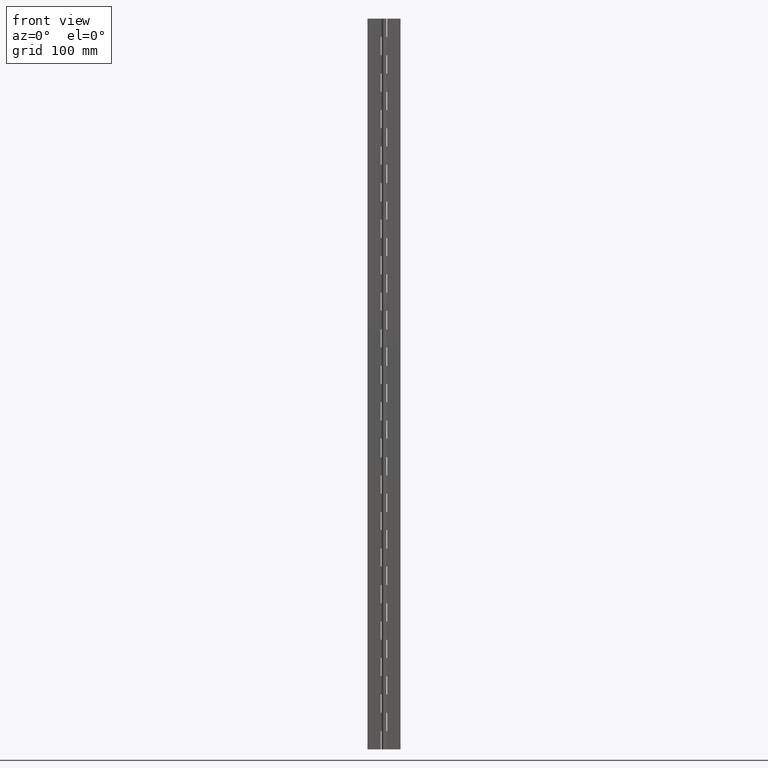
[diagram: clean part render]
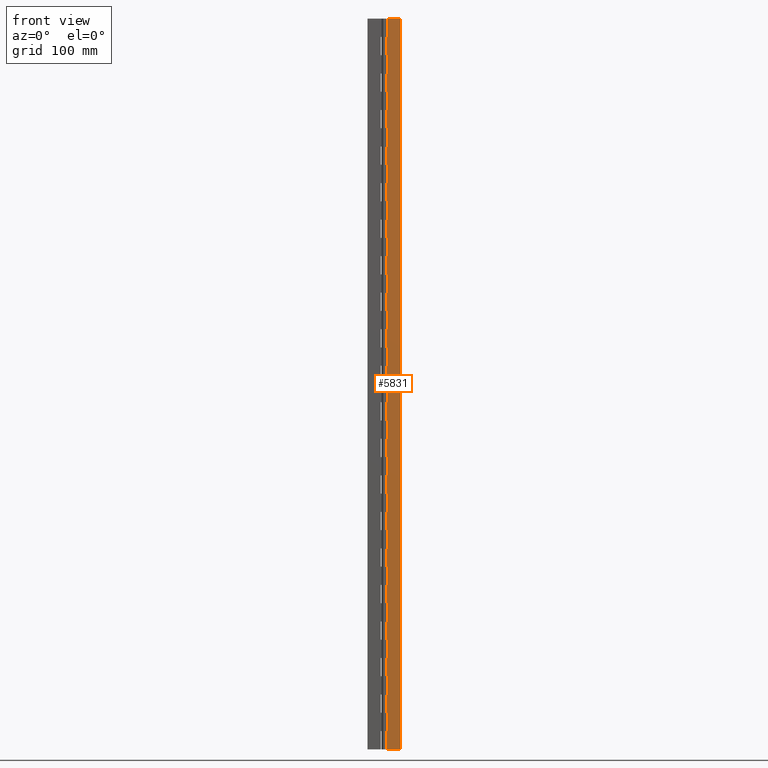
[diagram: same view with one face highlighted and labeled with its STEP entity id]
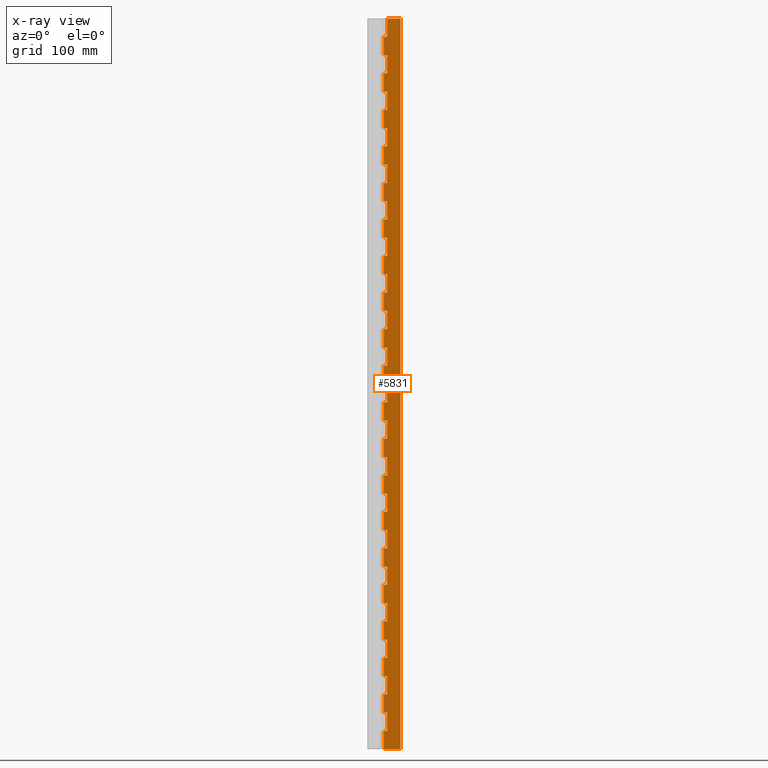
[diagram: x-ray of the same camera — body ghosted, the highlighted face saturated]
A machine part, front view. The second image highlights one B-rep face of the part: STEP entity #5831.
The next image is the same camera in x-ray: the body ghosted, the highlighted face saturated — about 0% of this face is hidden behind the body in this view.
In plain terms, the highlighted face is a freeform B-spline surface patch.
Its self-contained STEP definition (entity closure, byte-faithful):
#49=CARTESIAN_POINT('',(4.299996000000000,1.750000000000000,999.999977999999940));
#50=VERTEX_POINT('',#49);
#65=CARTESIAN_POINT('',(4.299996000000000,1.750000000000030,975.0));
#66=VERTEX_POINT('',#65);
#72=CARTESIAN_POINT('',(4.299996000000000,1.750000000000000,999.999977999999940));
#73=CARTESIAN_POINT('',(4.299996000000000,1.750000000000030,975.0));
#74=QUASI_UNIFORM_CURVE('',1,(#72,#73),.UNSPECIFIED.,.F.,.U.);
#75=EDGE_CURVE('',#50,#66,#74,.T.);
#128=CARTESIAN_POINT('',(-3.214592E-016,1.750000000000000,975.0));
#129=VERTEX_POINT('',#128);
#149=CARTESIAN_POINT('',(4.299996000000000,1.750000000000030,975.0));
#150=CARTESIAN_POINT('',(-3.214592E-016,1.750000000000000,975.0));
#151=QUASI_UNIFORM_CURVE('',1,(#149,#150),.UNSPECIFIED.,.F.,.U.);
#152=EDGE_CURVE('',#66,#129,#151,.T.);
#162=CARTESIAN_POINT('',(-3.214592E-016,1.750000000000000,950.000007999999980));
#163=VERTEX_POINT('',#162);
#227=CARTESIAN_POINT('',(4.299996000000000,1.750000000000030,950.000007999999980));
#228=VERTEX_POINT('',#227);
#234=CARTESIAN_POINT('',(-3.214592E-016,1.750000000000000,950.000007999999980));
#235=CARTESIAN_POINT('',(4.299996000000000,1.750000000000030,950.000007999999980));
#236=QUASI_UNIFORM_CURVE('',1,(#234,#235),.UNSPECIFIED.,.F.,.U.);
#237=EDGE_CURVE('',#163,#228,#236,.T.);
#255=CARTESIAN_POINT('',(4.299996000000000,1.750000000000030,925.0));
#256=VERTEX_POINT('',#255);
#262=CARTESIAN_POINT('',(4.299996000000000,1.750000000000030,950.000007999999980));
#263=CARTESIAN_POINT('',(4.299996000000000,1.750000000000030,925.0));
#264=QUASI_UNIFORM_CURVE('',1,(#262,#263),.UNSPECIFIED.,.F.,.U.);
#265=EDGE_CURVE('',#228,#256,#264,.T.);
#318=CARTESIAN_POINT('',(-3.214592E-016,1.750000000000000,925.0));
#319=VERTEX_POINT('',#318);
#339=CARTESIAN_POINT('',(4.299996000000000,1.750000000000030,925.0));
#340=CARTESIAN_POINT('',(-3.214592E-016,1.750000000000000,925.0));
#341=QUASI_UNIFORM_CURVE('',1,(#339,#340),.UNSPECIFIED.,.F.,.U.);
#342=EDGE_CURVE('',#256,#319,#341,.T.);
#352=CARTESIAN_POINT('',(-3.214592E-016,1.750000000000000,900.000007999999980));
#353=VERTEX_POINT('',#352);
#417=CARTESIAN_POINT('',(4.299996000000000,1.750000000000030,900.000007999999980));
#418=VERTEX_POINT('',#417);
#424=CARTESIAN_POINT('',(-3.214592E-016,1.750000000000000,900.000007999999980));
#425=CARTESIAN_POINT('',(4.299996000000000,1.750000000000030,900.000007999999980));
#426=QUASI_UNIFORM_CURVE('',1,(#424,#425),.UNSPECIFIED.,.F.,.U.);
#427=EDGE_CURVE('',#353,#418,#426,.T.);
#445=CARTESIAN_POINT('',(4.299996000000000,1.750000000000030,875.0));
#446=VERTEX_POINT('',#445);
#452=CARTESIAN_POINT('',(4.299996000000000,1.750000000000030,900.000007999999980));
#453=CARTESIAN_POINT('',(4.299996000000000,1.750000000000030,875.0));
#454=QUASI_UNIFORM_CURVE('',1,(#452,#453),.UNSPECIFIED.,.F.,.U.);
#455=EDGE_CURVE('',#418,#446,#454,.T.);
#508=CARTESIAN_POINT('',(-3.214592E-016,1.750000000000000,875.0));
#509=VERTEX_POINT('',#508);
#529=CARTESIAN_POINT('',(4.299996000000000,1.750000000000030,875.0));
#530=CARTESIAN_POINT('',(-3.214592E-016,1.750000000000000,875.0));
#531=QUASI_UNIFORM_CURVE('',1,(#529,#530),.UNSPECIFIED.,.F.,.U.);
#532=EDGE_CURVE('',#446,#509,#531,.T.);
#542=CARTESIAN_POINT('',(-3.214592E-016,1.750000000000000,850.000007999999980));
#543=VERTEX_POINT('',#542);
#607=CARTESIAN_POINT('',(4.299996000000000,1.750000000000030,850.000007999999980));
#608=VERTEX_POINT('',#607);
#614=CARTESIAN_POINT('',(-3.214592E-016,1.750000000000000,850.000007999999980));
#615=CARTESIAN_POINT('',(4.299996000000000,1.750000000000030,850.000007999999980));
#616=QUASI_UNIFORM_CURVE('',1,(#614,#615),.UNSPECIFIED.,.F.,.U.);
#617=EDGE_CURVE('',#543,#608,#616,.T.);
#635=CARTESIAN_POINT('',(4.299996000000000,1.750000000000030,825.0));
#636=VERTEX_POINT('',#635);
#642=CARTESIAN_POINT('',(4.299996000000000,1.750000000000030,850.000007999999980));
#643=CARTESIAN_POINT('',(4.299996000000000,1.750000000000030,825.0));
#644=QUASI_UNIFORM_CURVE('',1,(#642,#643),.UNSPECIFIED.,.F.,.U.);
#645=EDGE_CURVE('',#608,#636,#644,.T.);
#698=CARTESIAN_POINT('',(-3.214592E-016,1.750000000000000,825.0));
#699=VERTEX_POINT('',#698);
#719=CARTESIAN_POINT('',(4.299996000000000,1.750000000000030,825.0));
#720=CARTESIAN_POINT('',(-3.214592E-016,1.750000000000000,825.0));
#721=QUASI_UNIFORM_CURVE('',1,(#719,#720),.UNSPECIFIED.,.F.,.U.);
#722=EDGE_CURVE('',#636,#699,#721,.T.);
#732=CARTESIAN_POINT('',(-3.214592E-016,1.750000000000000,800.000008000000090));
#733=VERTEX_POINT('',#732);
#797=CARTESIAN_POINT('',(4.299996000000000,1.750000000000030,800.000008000000090));
#798=VERTEX_POINT('',#797);
#804=CARTESIAN_POINT('',(-3.214592E-016,1.750000000000000,800.000008000000090));
#805=CARTESIAN_POINT('',(4.299996000000000,1.750000000000030,800.000008000000090));
#806=QUASI_UNIFORM_CURVE('',1,(#804,#805),.UNSPECIFIED.,.F.,.U.);
#807=EDGE_CURVE('',#733,#798,#806,.T.);
#825=CARTESIAN_POINT('',(4.299996000000000,1.750000000000030,775.0));
#826=VERTEX_POINT('',#825);
#832=CARTESIAN_POINT('',(4.299996000000000,1.750000000000030,800.000008000000090));
#833=CARTESIAN_POINT('',(4.299996000000000,1.750000000000030,775.0));
#834=QUASI_UNIFORM_CURVE('',1,(#832,#833),.UNSPECIFIED.,.F.,.U.);
#835=EDGE_CURVE('',#798,#826,#834,.T.);
#888=CARTESIAN_POINT('',(-3.214592E-016,1.750000000000000,775.0));
#889=VERTEX_POINT('',#888);
#909=CARTESIAN_POINT('',(4.299996000000000,1.750000000000030,775.0));
#910=CARTESIAN_POINT('',(-3.214592E-016,1.750000000000000,775.0));
#911=QUASI_UNIFORM_CURVE('',1,(#909,#910),.UNSPECIFIED.,.F.,.U.);
#912=EDGE_CURVE('',#826,#889,#911,.T.);
#922=CARTESIAN_POINT('',(-3.214592E-016,1.750000000000000,750.000007999999980));
#923=VERTEX_POINT('',#922);
#987=CARTESIAN_POINT('',(4.299996000000000,1.750000000000030,750.000007999999980));
#988=VERTEX_POINT('',#987);
#994=CARTESIAN_POINT('',(-3.214592E-016,1.750000000000000,750.000007999999980));
#995=CARTESIAN_POINT('',(4.299996000000000,1.750000000000030,750.000007999999980));
#996=QUASI_UNIFORM_CURVE('',1,(#994,#995),.UNSPECIFIED.,.F.,.U.);
#997=EDGE_CURVE('',#923,#988,#996,.T.);
#1015=CARTESIAN_POINT('',(4.299996000000000,1.750000000000030,725.0));
#1016=VERTEX_POINT('',#1015);
#1022=CARTESIAN_POINT('',(4.299996000000000,1.750000000000030,750.000007999999980));
#1023=CARTESIAN_POINT('',(4.299996000000000,1.750000000000030,725.0));
#1024=QUASI_UNIFORM_CURVE('',1,(#1022,#1023),.UNSPECIFIED.,.F.,.U.);
#1025=EDGE_CURVE('',#988,#1016,#1024,.T.);
#1078=CARTESIAN_POINT('',(-3.214592E-016,1.750000000000000,725.0));
#1079=VERTEX_POINT('',#1078);
#1099=CARTESIAN_POINT('',(4.299996000000000,1.750000000000030,725.0));
#1100=CARTESIAN_POINT('',(-3.214592E-016,1.750000000000000,725.0));
#1101=QUASI_UNIFORM_CURVE('',1,(#1099,#1100),.UNSPECIFIED.,.F.,.U.);
#1102=EDGE_CURVE('',#1016,#1079,#1101,.T.);
#1112=CARTESIAN_POINT('',(-3.214592E-016,1.750000000000000,700.000007999999980));
#1113=VERTEX_POINT('',#1112);
#1177=CARTESIAN_POINT('',(4.299996000000000,1.750000000000030,700.000007999999980));
#1178=VERTEX_POINT('',#1177);
#1184=CARTESIAN_POINT('',(-3.214592E-016,1.750000000000000,700.000007999999980));
#1185=CARTESIAN_POINT('',(4.299996000000000,1.750000000000030,700.000007999999980));
#1186=QUASI_UNIFORM_CURVE('',1,(#1184,#1185),.UNSPECIFIED.,.F.,.U.);
#1187=EDGE_CURVE('',#1113,#1178,#1186,.T.);
#1205=CARTESIAN_POINT('',(4.299996000000000,1.750000000000030,675.0));
#1206=VERTEX_POINT('',#1205);
#1212=CARTESIAN_POINT('',(4.299996000000000,1.750000000000030,700.000007999999980));
#1213=CARTESIAN_POINT('',(4.299996000000000,1.750000000000030,675.0));
#1214=QUASI_UNIFORM_CURVE('',1,(#1212,#1213),.UNSPECIFIED.,.F.,.U.);
#1215=EDGE_CURVE('',#1178,#1206,#1214,.T.);
#1268=CARTESIAN_POINT('',(-3.214592E-016,1.750000000000000,675.0));
#1269=VERTEX_POINT('',#1268);
#1289=CARTESIAN_POINT('',(4.299996000000000,1.750000000000030,675.0));
#1290=CARTESIAN_POINT('',(-3.214592E-016,1.750000000000000,675.0));
#1291=QUASI_UNIFORM_CURVE('',1,(#1289,#1290),.UNSPECIFIED.,.F.,.U.);
#1292=EDGE_CURVE('',#1206,#1269,#1291,.T.);
#1302=CARTESIAN_POINT('',(-3.214592E-016,1.750000000000000,650.000007999999980));
#1303=VERTEX_POINT('',#1302);
#1367=CARTESIAN_POINT('',(4.299996000000000,1.750000000000030,650.000007999999980));
#1368=VERTEX_POINT('',#1367);
#1374=CARTESIAN_POINT('',(-3.214592E-016,1.750000000000000,650.000007999999980));
#1375=CARTESIAN_POINT('',(4.299996000000000,1.750000000000030,650.000007999999980));
#1376=QUASI_UNIFORM_CURVE('',1,(#1374,#1375),.UNSPECIFIED.,.F.,.U.);
#1377=EDGE_CURVE('',#1303,#1368,#1376,.T.);
#1395=CARTESIAN_POINT('',(4.299996000000000,1.750000000000030,625.0));
#1396=VERTEX_POINT('',#1395);
#1402=CARTESIAN_POINT('',(4.299996000000000,1.750000000000030,650.000007999999980));
#1403=CARTESIAN_POINT('',(4.299996000000000,1.750000000000030,625.0));
#1404=QUASI_UNIFORM_CURVE('',1,(#1402,#1403),.UNSPECIFIED.,.F.,.U.);
#1405=EDGE_CURVE('',#1368,#1396,#1404,.T.);
#1458=CARTESIAN_POINT('',(-3.214592E-016,1.750000000000000,625.0));
#1459=VERTEX_POINT('',#1458);
#1479=CARTESIAN_POINT('',(4.299996000000000,1.750000000000030,625.0));
#1480=CARTESIAN_POINT('',(-3.214592E-016,1.750000000000000,625.0));
#1481=QUASI_UNIFORM_CURVE('',1,(#1479,#1480),.UNSPECIFIED.,.F.,.U.);
#1482=EDGE_CURVE('',#1396,#1459,#1481,.T.);
#1492=CARTESIAN_POINT('',(-3.214592E-016,1.750000000000000,600.000007999999980));
#1493=VERTEX_POINT('',#1492);
#1557=CARTESIAN_POINT('',(4.299996000000000,1.750000000000030,600.000007999999980));
#1558=VERTEX_POINT('',#1557);
#1564=CARTESIAN_POINT('',(-3.214592E-016,1.750000000000000,600.000007999999980));
#1565=CARTESIAN_POINT('',(4.299996000000000,1.750000000000030,600.000007999999980));
#1566=QUASI_UNIFORM_CURVE('',1,(#1564,#1565),.UNSPECIFIED.,.F.,.U.);
#1567=EDGE_CURVE('',#1493,#1558,#1566,.T.);
#1585=CARTESIAN_POINT('',(4.299996000000000,1.750000000000030,575.0));
#1586=VERTEX_POINT('',#1585);
#1592=CARTESIAN_POINT('',(4.299996000000000,1.750000000000030,600.000007999999980));
#1593=CARTESIAN_POINT('',(4.299996000000000,1.750000000000030,575.0));
#1594=QUASI_UNIFORM_CURVE('',1,(#1592,#1593),.UNSPECIFIED.,.F.,.U.);
#1595=EDGE_CURVE('',#1558,#1586,#1594,.T.);
#1648=CARTESIAN_POINT('',(-3.214592E-016,1.750000000000000,575.0));
#1649=VERTEX_POINT('',#1648);
#1669=CARTESIAN_POINT('',(4.299996000000000,1.750000000000030,575.0));
#1670=CARTESIAN_POINT('',(-3.214592E-016,1.750000000000000,575.0));
#1671=QUASI_UNIFORM_CURVE('',1,(#1669,#1670),.UNSPECIFIED.,.F.,.U.);
#1672=EDGE_CURVE('',#1586,#1649,#1671,.T.);
#1682=CARTESIAN_POINT('',(-3.214592E-016,1.750000000000000,550.000008000000090));
#1683=VERTEX_POINT('',#1682);
#1747=CARTESIAN_POINT('',(4.299996000000000,1.750000000000030,550.000008000000090));
#1748=VERTEX_POINT('',#1747);
#1754=CARTESIAN_POINT('',(-3.214592E-016,1.750000000000000,550.000008000000090));
#1755=CARTESIAN_POINT('',(4.299996000000000,1.750000000000030,550.000008000000090));
#1756=QUASI_UNIFORM_CURVE('',1,(#1754,#1755),.UNSPECIFIED.,.F.,.U.);
#1757=EDGE_CURVE('',#1683,#1748,#1756,.T.);
#1775=CARTESIAN_POINT('',(4.299996000000000,1.750000000000030,525.0));
#1776=VERTEX_POINT('',#1775);
#1782=CARTESIAN_POINT('',(4.299996000000000,1.750000000000030,550.000008000000090));
#1783=CARTESIAN_POINT('',(4.299996000000000,1.750000000000030,525.0));
#1784=QUASI_UNIFORM_CURVE('',1,(#1782,#1783),.UNSPECIFIED.,.F.,.U.);
#1785=EDGE_CURVE('',#1748,#1776,#1784,.T.);
#1838=CARTESIAN_POINT('',(-3.214592E-016,1.750000000000000,525.0));
#1839=VERTEX_POINT('',#1838);
#1859=CARTESIAN_POINT('',(4.299996000000000,1.750000000000030,525.0));
#1860=CARTESIAN_POINT('',(-3.214592E-016,1.750000000000000,525.0));
#1861=QUASI_UNIFORM_CURVE('',1,(#1859,#1860),.UNSPECIFIED.,.F.,.U.);
#1862=EDGE_CURVE('',#1776,#1839,#1861,.T.);
#1872=CARTESIAN_POINT('',(-3.214592E-016,1.750000000000000,500.000007999999980));
#1873=VERTEX_POINT('',#1872);
#1937=CARTESIAN_POINT('',(4.299996000000000,1.750000000000030,500.000007999999980));
#1938=VERTEX_POINT('',#1937);
#1944=CARTESIAN_POINT('',(-3.214592E-016,1.750000000000000,500.000007999999980));
#1945=CARTESIAN_POINT('',(4.299996000000000,1.750000000000030,500.000007999999980));
#1946=QUASI_UNIFORM_CURVE('',1,(#1944,#1945),.UNSPECIFIED.,.F.,.U.);
#1947=EDGE_CURVE('',#1873,#1938,#1946,.T.);
#1965=CARTESIAN_POINT('',(4.299996000000000,1.750000000000030,475.0));
#1966=VERTEX_POINT('',#1965);
#1972=CARTESIAN_POINT('',(4.299996000000000,1.750000000000030,500.000007999999980));
#1973=CARTESIAN_POINT('',(4.299996000000000,1.750000000000030,475.0));
#1974=QUASI_UNIFORM_CURVE('',1,(#1972,#1973),.UNSPECIFIED.,.F.,.U.);
#1975=EDGE_CURVE('',#1938,#1966,#1974,.T.);
#2028=CARTESIAN_POINT('',(-3.214592E-016,1.750000000000000,475.0));
#2029=VERTEX_POINT('',#2028);
#2049=CARTESIAN_POINT('',(4.299996000000000,1.750000000000030,475.0));
#2050=CARTESIAN_POINT('',(-3.214592E-016,1.750000000000000,475.0));
#2051=QUASI_UNIFORM_CURVE('',1,(#2049,#2050),.UNSPECIFIED.,.F.,.U.);
#2052=EDGE_CURVE('',#1966,#2029,#2051,.T.);
#2062=CARTESIAN_POINT('',(-3.214592E-016,1.750000000000000,450.000007999999980));
#2063=VERTEX_POINT('',#2062);
#2127=CARTESIAN_POINT('',(4.299996000000000,1.750000000000030,450.000007999999980));
#2128=VERTEX_POINT('',#2127);
#2134=CARTESIAN_POINT('',(-3.214592E-016,1.750000000000000,450.000007999999980));
#2135=CARTESIAN_POINT('',(4.299996000000000,1.750000000000030,450.000007999999980));
#2136=QUASI_UNIFORM_CURVE('',1,(#2134,#2135),.UNSPECIFIED.,.F.,.U.);
#2137=EDGE_CURVE('',#2063,#2128,#2136,.T.);
#2155=CARTESIAN_POINT('',(4.299996000000000,1.750000000000030,425.0));
#2156=VERTEX_POINT('',#2155);
#2162=CARTESIAN_POINT('',(4.299996000000000,1.750000000000030,450.000007999999980));
#2163=CARTESIAN_POINT('',(4.299996000000000,1.750000000000030,425.0));
#2164=QUASI_UNIFORM_CURVE('',1,(#2162,#2163),.UNSPECIFIED.,.F.,.U.);
#2165=EDGE_CURVE('',#2128,#2156,#2164,.T.);
#2218=CARTESIAN_POINT('',(-3.214592E-016,1.750000000000000,425.0));
#2219=VERTEX_POINT('',#2218);
#2239=CARTESIAN_POINT('',(4.299996000000000,1.750000000000030,425.0));
#2240=CARTESIAN_POINT('',(-3.214592E-016,1.750000000000000,425.0));
#2241=QUASI_UNIFORM_CURVE('',1,(#2239,#2240),.UNSPECIFIED.,.F.,.U.);
#2242=EDGE_CURVE('',#2156,#2219,#2241,.T.);
#2252=CARTESIAN_POINT('',(-3.214592E-016,1.750000000000000,400.000007999999980));
#2253=VERTEX_POINT('',#2252);
#2317=CARTESIAN_POINT('',(4.299996000000000,1.750000000000030,400.000007999999980));
#2318=VERTEX_POINT('',#2317);
#2324=CARTESIAN_POINT('',(-3.214592E-016,1.750000000000000,400.000007999999980));
#2325=CARTESIAN_POINT('',(4.299996000000000,1.750000000000030,400.000007999999980));
#2326=QUASI_UNIFORM_CURVE('',1,(#2324,#2325),.UNSPECIFIED.,.F.,.U.);
#2327=EDGE_CURVE('',#2253,#2318,#2326,.T.);
#2345=CARTESIAN_POINT('',(4.299996000000000,1.750000000000030,375.0));
#2346=VERTEX_POINT('',#2345);
#2352=CARTESIAN_POINT('',(4.299996000000000,1.750000000000030,400.000007999999980));
#2353=CARTESIAN_POINT('',(4.299996000000000,1.750000000000030,375.0));
#2354=QUASI_UNIFORM_CURVE('',1,(#2352,#2353),.UNSPECIFIED.,.F.,.U.);
#2355=EDGE_CURVE('',#2318,#2346,#2354,.T.);
#2408=CARTESIAN_POINT('',(-3.214592E-016,1.750000000000000,375.0));
#2409=VERTEX_POINT('',#2408);
#2429=CARTESIAN_POINT('',(4.299996000000000,1.750000000000030,375.0));
#2430=CARTESIAN_POINT('',(-3.214592E-016,1.750000000000000,375.0));
#2431=QUASI_UNIFORM_CURVE('',1,(#2429,#2430),.UNSPECIFIED.,.F.,.U.);
#2432=EDGE_CURVE('',#2346,#2409,#2431,.T.);
#2442=CARTESIAN_POINT('',(-3.214592E-016,1.750000000000000,350.000007999999980));
#2443=VERTEX_POINT('',#2442);
#2507=CARTESIAN_POINT('',(4.299996000000000,1.750000000000030,350.000007999999980));
#2508=VERTEX_POINT('',#2507);
#2514=CARTESIAN_POINT('',(-3.214592E-016,1.750000000000000,350.000007999999980));
#2515=CARTESIAN_POINT('',(4.299996000000000,1.750000000000030,350.000007999999980));
#2516=QUASI_UNIFORM_CURVE('',1,(#2514,#2515),.UNSPECIFIED.,.F.,.U.);
#2517=EDGE_CURVE('',#2443,#2508,#2516,.T.);
#2535=CARTESIAN_POINT('',(4.299996000000000,1.750000000000030,325.0));
#2536=VERTEX_POINT('',#2535);
#2542=CARTESIAN_POINT('',(4.299996000000000,1.750000000000030,350.000007999999980));
#2543=CARTESIAN_POINT('',(4.299996000000000,1.750000000000030,325.0));
#2544=QUASI_UNIFORM_CURVE('',1,(#2542,#2543),.UNSPECIFIED.,.F.,.U.);
#2545=EDGE_CURVE('',#2508,#2536,#2544,.T.);
#2598=CARTESIAN_POINT('',(-3.214592E-016,1.750000000000000,325.0));
#2599=VERTEX_POINT('',#2598);
#2619=CARTESIAN_POINT('',(4.299996000000000,1.750000000000030,325.0));
#2620=CARTESIAN_POINT('',(-3.214592E-016,1.750000000000000,325.0));
#2621=QUASI_UNIFORM_CURVE('',1,(#2619,#2620),.UNSPECIFIED.,.F.,.U.);
#2622=EDGE_CURVE('',#2536,#2599,#2621,.T.);
#2632=CARTESIAN_POINT('',(-3.214592E-016,1.750000000000000,300.000007999999980));
#2633=VERTEX_POINT('',#2632);
#2697=CARTESIAN_POINT('',(4.299996000000000,1.750000000000030,300.000007999999980));
#2698=VERTEX_POINT('',#2697);
#2704=CARTESIAN_POINT('',(-3.214592E-016,1.750000000000000,300.000007999999980));
#2705=CARTESIAN_POINT('',(4.299996000000000,1.750000000000030,300.000007999999980));
#2706=QUASI_UNIFORM_CURVE('',1,(#2704,#2705),.UNSPECIFIED.,.F.,.U.);
#2707=EDGE_CURVE('',#2633,#2698,#2706,.T.);
#2725=CARTESIAN_POINT('',(4.299996000000000,1.750000000000030,275.0));
#2726=VERTEX_POINT('',#2725);
#2732=CARTESIAN_POINT('',(4.299996000000000,1.750000000000030,300.000007999999980));
#2733=CARTESIAN_POINT('',(4.299996000000000,1.750000000000030,275.0));
#2734=QUASI_UNIFORM_CURVE('',1,(#2732,#2733),.UNSPECIFIED.,.F.,.U.);
#2735=EDGE_CURVE('',#2698,#2726,#2734,.T.);
#2788=CARTESIAN_POINT('',(-3.214592E-016,1.750000000000000,275.0));
#2789=VERTEX_POINT('',#2788);
#2809=CARTESIAN_POINT('',(4.299996000000000,1.750000000000030,275.0));
#2810=CARTESIAN_POINT('',(-3.214592E-016,1.750000000000000,275.0));
#2811=QUASI_UNIFORM_CURVE('',1,(#2809,#2810),.UNSPECIFIED.,.F.,.U.);
#2812=EDGE_CURVE('',#2726,#2789,#2811,.T.);
#2822=CARTESIAN_POINT('',(-3.214592E-016,1.750000000000000,250.000008000000010));
#2823=VERTEX_POINT('',#2822);
#2887=CARTESIAN_POINT('',(4.299996000000000,1.750000000000030,250.000008000000010));
#2888=VERTEX_POINT('',#2887);
#2894=CARTESIAN_POINT('',(-3.214592E-016,1.750000000000000,250.000008000000010));
#2895=CARTESIAN_POINT('',(4.299996000000000,1.750000000000030,250.000008000000010));
#2896=QUASI_UNIFORM_CURVE('',1,(#2894,#2895),.UNSPECIFIED.,.F.,.U.);
#2897=EDGE_CURVE('',#2823,#2888,#2896,.T.);
#2915=CARTESIAN_POINT('',(4.299996000000000,1.750000000000030,225.0));
#2916=VERTEX_POINT('',#2915);
#2922=CARTESIAN_POINT('',(4.299996000000000,1.750000000000030,250.000008000000010));
#2923=CARTESIAN_POINT('',(4.299996000000000,1.750000000000030,225.0));
#2924=QUASI_UNIFORM_CURVE('',1,(#2922,#2923),.UNSPECIFIED.,.F.,.U.);
#2925=EDGE_CURVE('',#2888,#2916,#2924,.T.);
#2978=CARTESIAN_POINT('',(-3.214592E-016,1.750000000000000,225.0));
#2979=VERTEX_POINT('',#2978);
#2999=CARTESIAN_POINT('',(4.299996000000000,1.750000000000030,225.0));
#3000=CARTESIAN_POINT('',(-3.214592E-016,1.750000000000000,225.0));
#3001=QUASI_UNIFORM_CURVE('',1,(#2999,#3000),.UNSPECIFIED.,.F.,.U.);
#3002=EDGE_CURVE('',#2916,#2979,#3001,.T.);
#3012=CARTESIAN_POINT('',(-3.214592E-016,1.750000000000000,200.000008000000010));
#3013=VERTEX_POINT('',#3012);
#3077=CARTESIAN_POINT('',(4.299996000000000,1.750000000000030,200.000008000000010));
#3078=VERTEX_POINT('',#3077);
#3084=CARTESIAN_POINT('',(-3.214592E-016,1.750000000000000,200.000008000000010));
#3085=CARTESIAN_POINT('',(4.299996000000000,1.750000000000030,200.000008000000010));
#3086=QUASI_UNIFORM_CURVE('',1,(#3084,#3085),.UNSPECIFIED.,.F.,.U.);
#3087=EDGE_CURVE('',#3013,#3078,#3086,.T.);
#3105=CARTESIAN_POINT('',(4.299996000000000,1.750000000000030,175.0));
#3106=VERTEX_POINT('',#3105);
#3112=CARTESIAN_POINT('',(4.299996000000000,1.750000000000030,200.000008000000010));
#3113=CARTESIAN_POINT('',(4.299996000000000,1.750000000000030,175.0));
#3114=QUASI_UNIFORM_CURVE('',1,(#3112,#3113),.UNSPECIFIED.,.F.,.U.);
#3115=EDGE_CURVE('',#3078,#3106,#3114,.T.);
#3168=CARTESIAN_POINT('',(-3.214592E-016,1.750000000000000,175.0));
#3169=VERTEX_POINT('',#3168);
#3189=CARTESIAN_POINT('',(4.299996000000000,1.750000000000030,175.0));
#3190=CARTESIAN_POINT('',(-3.214592E-016,1.750000000000000,175.0));
#3191=QUASI_UNIFORM_CURVE('',1,(#3189,#3190),.UNSPECIFIED.,.F.,.U.);
#3192=EDGE_CURVE('',#3106,#3169,#3191,.T.);
#3202=CARTESIAN_POINT('',(-3.214592E-016,1.750000000000000,150.000008000000010));
#3203=VERTEX_POINT('',#3202);
#3267=CARTESIAN_POINT('',(4.299996000000000,1.750000000000030,150.000008000000010));
#3268=VERTEX_POINT('',#3267);
#3274=CARTESIAN_POINT('',(-3.214592E-016,1.750000000000000,150.000008000000010));
#3275=CARTESIAN_POINT('',(4.299996000000000,1.750000000000030,150.000008000000010));
#3276=QUASI_UNIFORM_CURVE('',1,(#3274,#3275),.UNSPECIFIED.,.F.,.U.);
#3277=EDGE_CURVE('',#3203,#3268,#3276,.T.);
#3295=CARTESIAN_POINT('',(4.299996000000000,1.750000000000030,125.0));
#3296=VERTEX_POINT('',#3295);
#3302=CARTESIAN_POINT('',(4.299996000000000,1.750000000000030,150.000008000000010));
#3303=CARTESIAN_POINT('',(4.299996000000000,1.750000000000030,125.0));
#3304=QUASI_UNIFORM_CURVE('',1,(#3302,#3303),.UNSPECIFIED.,.F.,.U.);
#3305=EDGE_CURVE('',#3268,#3296,#3304,.T.);
#3358=CARTESIAN_POINT('',(-3.214592E-016,1.750000000000000,125.0));
#3359=VERTEX_POINT('',#3358);
#3379=CARTESIAN_POINT('',(4.299996000000000,1.750000000000030,125.0));
#3380=CARTESIAN_POINT('',(-3.214592E-016,1.750000000000000,125.0));
#3381=QUASI_UNIFORM_CURVE('',1,(#3379,#3380),.UNSPECIFIED.,.F.,.U.);
#3382=EDGE_CURVE('',#3296,#3359,#3381,.T.);
#3392=CARTESIAN_POINT('',(-3.214592E-016,1.750000000000000,100.000007999999990));
#3393=VERTEX_POINT('',#3392);
#3457=CARTESIAN_POINT('',(4.299996000000000,1.750000000000030,100.000007999999990));
#3458=VERTEX_POINT('',#3457);
#3464=CARTESIAN_POINT('',(-3.214592E-016,1.750000000000000,100.000007999999990));
#3465=CARTESIAN_POINT('',(4.299996000000000,1.750000000000030,100.000007999999990));
#3466=QUASI_UNIFORM_CURVE('',1,(#3464,#3465),.UNSPECIFIED.,.F.,.U.);
#3467=EDGE_CURVE('',#3393,#3458,#3466,.T.);
#3485=CARTESIAN_POINT('',(4.299996000000000,1.750000000000030,75.0));
#3486=VERTEX_POINT('',#3485);
#3492=CARTESIAN_POINT('',(4.299996000000000,1.750000000000030,100.000007999999990));
#3493=CARTESIAN_POINT('',(4.299996000000000,1.750000000000030,75.0));
#3494=QUASI_UNIFORM_CURVE('',1,(#3492,#3493),.UNSPECIFIED.,.F.,.U.);
#3495=EDGE_CURVE('',#3458,#3486,#3494,.T.);
#3548=CARTESIAN_POINT('',(-3.214592E-016,1.750000000000000,75.0));
#3549=VERTEX_POINT('',#3548);
#3569=CARTESIAN_POINT('',(4.299996000000000,1.750000000000030,75.0));
#3570=CARTESIAN_POINT('',(-3.214592E-016,1.750000000000000,75.0));
#3571=QUASI_UNIFORM_CURVE('',1,(#3569,#3570),.UNSPECIFIED.,.F.,.U.);
#3572=EDGE_CURVE('',#3486,#3549,#3571,.T.);
#3582=CARTESIAN_POINT('',(-3.214592E-016,1.750000000000000,50.000007999999902));
#3583=VERTEX_POINT('',#3582);
#3647=CARTESIAN_POINT('',(4.299996000000000,1.750000000000030,50.000007999999902));
#3648=VERTEX_POINT('',#3647);
#3654=CARTESIAN_POINT('',(-3.214592E-016,1.750000000000000,50.000007999999902));
#3655=CARTESIAN_POINT('',(4.299996000000000,1.750000000000030,50.000007999999902));
#3656=QUASI_UNIFORM_CURVE('',1,(#3654,#3655),.UNSPECIFIED.,.F.,.U.);
#3657=EDGE_CURVE('',#3583,#3648,#3656,.T.);
#3675=CARTESIAN_POINT('',(4.299996000000000,1.750000000000030,25.0));
#3676=VERTEX_POINT('',#3675);
#3682=CARTESIAN_POINT('',(4.299996000000000,1.750000000000030,50.000007999999902));
#3683=CARTESIAN_POINT('',(4.299996000000000,1.750000000000030,25.0));
#3684=QUASI_UNIFORM_CURVE('',1,(#3682,#3683),.UNSPECIFIED.,.F.,.U.);
#3685=EDGE_CURVE('',#3648,#3676,#3684,.T.);
#3738=CARTESIAN_POINT('',(-3.214592E-016,1.750000000000000,25.0));
#3739=VERTEX_POINT('',#3738);
#3759=CARTESIAN_POINT('',(4.299996000000000,1.750000000000030,25.0));
#3760=CARTESIAN_POINT('',(-3.214592E-016,1.750000000000000,25.0));
#3761=QUASI_UNIFORM_CURVE('',1,(#3759,#3760),.UNSPECIFIED.,.F.,.U.);
#3762=EDGE_CURVE('',#3676,#3739,#3761,.T.);
#3772=CARTESIAN_POINT('',(22.500000000000000,1.750000000000000,0.0));
#3773=VERTEX_POINT('',#3772);
#3774=CARTESIAN_POINT('',(-3.214592E-016,1.750000000000000,0.0));
#3775=VERTEX_POINT('',#3774);
#3776=CARTESIAN_POINT('',(22.500000000000000,1.750000000000000,0.0));
#3777=CARTESIAN_POINT('',(-3.214592E-016,1.750000000000000,0.0));
#3778=QUASI_UNIFORM_CURVE('',1,(#3776,#3777),.UNSPECIFIED.,.F.,.U.);
#3779=EDGE_CURVE('',#3773,#3775,#3778,.T.);
#3858=CARTESIAN_POINT('',(22.500000000000000,1.750000000000000,999.999977999999940));
#3859=VERTEX_POINT('',#3858);
#3865=CARTESIAN_POINT('',(22.500000000000000,1.750000000000000,999.999977999999940));
#3866=CARTESIAN_POINT('',(22.500000000000000,1.750000000000000,0.0));
#3867=QUASI_UNIFORM_CURVE('',1,(#3865,#3866),.UNSPECIFIED.,.F.,.U.);
#3868=EDGE_CURVE('',#3859,#3773,#3867,.T.);
#3952=CARTESIAN_POINT('',(-3.214592E-016,1.750000000000000,25.0));
#3953=CARTESIAN_POINT('',(-3.214592E-016,1.750000000000000,0.0));
#3954=QUASI_UNIFORM_CURVE('',1,(#3952,#3953),.UNSPECIFIED.,.F.,.U.);
#3955=EDGE_CURVE('',#3739,#3775,#3954,.T.);
#4040=CARTESIAN_POINT('',(-3.214592E-016,1.750000000000000,75.0));
#4041=CARTESIAN_POINT('',(-3.214592E-016,1.750000000000000,50.000007999999902));
#4042=QUASI_UNIFORM_CURVE('',1,(#4040,#4041),.UNSPECIFIED.,.F.,.U.);
#4043=EDGE_CURVE('',#3549,#3583,#4042,.T.);
#4128=CARTESIAN_POINT('',(-3.214592E-016,1.750000000000000,125.0));
#4129=CARTESIAN_POINT('',(-3.214592E-016,1.750000000000000,100.000007999999990));
#4130=QUASI_UNIFORM_CURVE('',1,(#4128,#4129),.UNSPECIFIED.,.F.,.U.);
#4131=EDGE_CURVE('',#3359,#3393,#4130,.T.);
#4216=CARTESIAN_POINT('',(-3.214592E-016,1.750000000000000,175.0));
#4217=CARTESIAN_POINT('',(-3.214592E-016,1.750000000000000,150.000008000000010));
#4218=QUASI_UNIFORM_CURVE('',1,(#4216,#4217),.UNSPECIFIED.,.F.,.U.);
#4219=EDGE_CURVE('',#3169,#3203,#4218,.T.);
#4304=CARTESIAN_POINT('',(-3.214592E-016,1.750000000000000,225.0));
#4305=CARTESIAN_POINT('',(-3.214592E-016,1.750000000000000,200.000008000000010));
#4306=QUASI_UNIFORM_CURVE('',1,(#4304,#4305),.UNSPECIFIED.,.F.,.U.);
#4307=EDGE_CURVE('',#2979,#3013,#4306,.T.);
#4392=CARTESIAN_POINT('',(-3.214592E-016,1.750000000000000,275.0));
#4393=CARTESIAN_POINT('',(-3.214592E-016,1.750000000000000,250.000008000000010));
#4394=QUASI_UNIFORM_CURVE('',1,(#4392,#4393),.UNSPECIFIED.,.F.,.U.);
#4395=EDGE_CURVE('',#2789,#2823,#4394,.T.);
#4480=CARTESIAN_POINT('',(-3.214592E-016,1.750000000000000,325.0));
#4481=CARTESIAN_POINT('',(-3.214592E-016,1.750000000000000,300.000007999999980));
#4482=QUASI_UNIFORM_CURVE('',1,(#4480,#4481),.UNSPECIFIED.,.F.,.U.);
#4483=EDGE_CURVE('',#2599,#2633,#4482,.T.);
#4568=CARTESIAN_POINT('',(-3.214592E-016,1.750000000000000,375.0));
#4569=CARTESIAN_POINT('',(-3.214592E-016,1.750000000000000,350.000007999999980));
#4570=QUASI_UNIFORM_CURVE('',1,(#4568,#4569),.UNSPECIFIED.,.F.,.U.);
#4571=EDGE_CURVE('',#2409,#2443,#4570,.T.);
#4656=CARTESIAN_POINT('',(-3.214592E-016,1.750000000000000,425.0));
#4657=CARTESIAN_POINT('',(-3.214592E-016,1.750000000000000,400.000007999999980));
#4658=QUASI_UNIFORM_CURVE('',1,(#4656,#4657),.UNSPECIFIED.,.F.,.U.);
#4659=EDGE_CURVE('',#2219,#2253,#4658,.T.);
#4744=CARTESIAN_POINT('',(-3.214592E-016,1.750000000000000,475.0));
#4745=CARTESIAN_POINT('',(-3.214592E-016,1.750000000000000,450.000007999999980));
#4746=QUASI_UNIFORM_CURVE('',1,(#4744,#4745),.UNSPECIFIED.,.F.,.U.);
#4747=EDGE_CURVE('',#2029,#2063,#4746,.T.);
#4832=CARTESIAN_POINT('',(-3.214592E-016,1.750000000000000,525.0));
#4833=CARTESIAN_POINT('',(-3.214592E-016,1.750000000000000,500.000007999999980));
#4834=QUASI_UNIFORM_CURVE('',1,(#4832,#4833),.UNSPECIFIED.,.F.,.U.);
#4835=EDGE_CURVE('',#1839,#1873,#4834,.T.);
#4920=CARTESIAN_POINT('',(-3.214592E-016,1.750000000000000,575.0));
#4921=CARTESIAN_POINT('',(-3.214592E-016,1.750000000000000,550.000008000000090));
#4922=QUASI_UNIFORM_CURVE('',1,(#4920,#4921),.UNSPECIFIED.,.F.,.U.);
#4923=EDGE_CURVE('',#1649,#1683,#4922,.T.);
#5008=CARTESIAN_POINT('',(-3.214592E-016,1.750000000000000,625.0));
#5009=CARTESIAN_POINT('',(-3.214592E-016,1.750000000000000,600.000007999999980));
#5010=QUASI_UNIFORM_CURVE('',1,(#5008,#5009),.UNSPECIFIED.,.F.,.U.);
#5011=EDGE_CURVE('',#1459,#1493,#5010,.T.);
#5096=CARTESIAN_POINT('',(-3.214592E-016,1.750000000000000,675.0));
#5097=CARTESIAN_POINT('',(-3.214592E-016,1.750000000000000,650.000007999999980));
#5098=QUASI_UNIFORM_CURVE('',1,(#5096,#5097),.UNSPECIFIED.,.F.,.U.);
#5099=EDGE_CURVE('',#1269,#1303,#5098,.T.);
#5184=CARTESIAN_POINT('',(-3.214592E-016,1.750000000000000,725.0));
#5185=CARTESIAN_POINT('',(-3.214592E-016,1.750000000000000,700.000007999999980));
#5186=QUASI_UNIFORM_CURVE('',1,(#5184,#5185),.UNSPECIFIED.,.F.,.U.);
#5187=EDGE_CURVE('',#1079,#1113,#5186,.T.);
#5272=CARTESIAN_POINT('',(-3.214592E-016,1.750000000000000,775.0));
#5273=CARTESIAN_POINT('',(-3.214592E-016,1.750000000000000,750.000007999999980));
#5274=QUASI_UNIFORM_CURVE('',1,(#5272,#5273),.UNSPECIFIED.,.F.,.U.);
#5275=EDGE_CURVE('',#889,#923,#5274,.T.);
#5360=CARTESIAN_POINT('',(-3.214592E-016,1.750000000000000,825.0));
#5361=CARTESIAN_POINT('',(-3.214592E-016,1.750000000000000,800.000008000000090));
#5362=QUASI_UNIFORM_CURVE('',1,(#5360,#5361),.UNSPECIFIED.,.F.,.U.);
#5363=EDGE_CURVE('',#699,#733,#5362,.T.);
#5448=CARTESIAN_POINT('',(-3.214592E-016,1.750000000000000,875.0));
#5449=CARTESIAN_POINT('',(-3.214592E-016,1.750000000000000,850.000007999999980));
#5450=QUASI_UNIFORM_CURVE('',1,(#5448,#5449),.UNSPECIFIED.,.F.,.U.);
#5451=EDGE_CURVE('',#509,#543,#5450,.T.);
#5536=CARTESIAN_POINT('',(-3.214592E-016,1.750000000000000,925.0));
#5537=CARTESIAN_POINT('',(-3.214592E-016,1.750000000000000,900.000007999999980));
#5538=QUASI_UNIFORM_CURVE('',1,(#5536,#5537),.UNSPECIFIED.,.F.,.U.);
#5539=EDGE_CURVE('',#319,#353,#5538,.T.);
#5550=CARTESIAN_POINT('',(22.500000000000000,1.750000000000000,999.999977999999940));
#5551=CARTESIAN_POINT('',(4.299996000000000,1.750000000000000,999.999977999999940));
#5552=QUASI_UNIFORM_CURVE('',1,(#5550,#5551),.UNSPECIFIED.,.F.,.U.);
#5553=EDGE_CURVE('',#3859,#50,#5552,.T.);
#5734=CARTESIAN_POINT('',(-3.214592E-016,1.750000000000000,975.0));
#5735=CARTESIAN_POINT('',(-3.214592E-016,1.750000000000000,950.000007999999980));
#5736=QUASI_UNIFORM_CURVE('',1,(#5734,#5735),.UNSPECIFIED.,.F.,.U.);
#5737=EDGE_CURVE('',#129,#163,#5736,.T.);
#5742=CARTESIAN_POINT('',(-1.123874956390635,1.750000000000000,1049.950003124759000));
#5743=CARTESIAN_POINT('',(-1.123874956390635,1.750000000000000,-49.950025124758888));
#5744=CARTESIAN_POINT('',(23.623875559887662,1.750000000000000,1049.950003124759000));
#5745=CARTESIAN_POINT('',(23.623875559887662,1.750000000000000,-49.950025124758888));
#5746=B_SPLINE_SURFACE_WITH_KNOTS('',1,1,((#5742,#5744),(#5743,#5745)),.UNSPECIFIED.,.F.,.F.,.U.,(2,2),(2,2),(0.0,1099.900028249518100),(0.0,24.747750516278298),.UNSPECIFIED.);
#5747=ORIENTED_EDGE('',*,*,#75,.T.);
#5748=ORIENTED_EDGE('',*,*,#152,.T.);
#5749=ORIENTED_EDGE('',*,*,#5737,.T.);
#5750=ORIENTED_EDGE('',*,*,#237,.T.);
#5751=ORIENTED_EDGE('',*,*,#265,.T.);
#5752=ORIENTED_EDGE('',*,*,#342,.T.);
#5753=ORIENTED_EDGE('',*,*,#5539,.T.);
#5754=ORIENTED_EDGE('',*,*,#427,.T.);
#5755=ORIENTED_EDGE('',*,*,#455,.T.);
#5756=ORIENTED_EDGE('',*,*,#532,.T.);
#5757=ORIENTED_EDGE('',*,*,#5451,.T.);
#5758=ORIENTED_EDGE('',*,*,#617,.T.);
#5759=ORIENTED_EDGE('',*,*,#645,.T.);
#5760=ORIENTED_EDGE('',*,*,#722,.T.);
#5761=ORIENTED_EDGE('',*,*,#5363,.T.);
#5762=ORIENTED_EDGE('',*,*,#807,.T.);
#5763=ORIENTED_EDGE('',*,*,#835,.T.);
#5764=ORIENTED_EDGE('',*,*,#912,.T.);
#5765=ORIENTED_EDGE('',*,*,#5275,.T.);
#5766=ORIENTED_EDGE('',*,*,#997,.T.);
#5767=ORIENTED_EDGE('',*,*,#1025,.T.);
#5768=ORIENTED_EDGE('',*,*,#1102,.T.);
#5769=ORIENTED_EDGE('',*,*,#5187,.T.);
#5770=ORIENTED_EDGE('',*,*,#1187,.T.);
#5771=ORIENTED_EDGE('',*,*,#1215,.T.);
#5772=ORIENTED_EDGE('',*,*,#1292,.T.);
#5773=ORIENTED_EDGE('',*,*,#5099,.T.);
#5774=ORIENTED_EDGE('',*,*,#1377,.T.);
#5775=ORIENTED_EDGE('',*,*,#1405,.T.);
#5776=ORIENTED_EDGE('',*,*,#1482,.T.);
#5777=ORIENTED_EDGE('',*,*,#5011,.T.);
#5778=ORIENTED_EDGE('',*,*,#1567,.T.);
#5779=ORIENTED_EDGE('',*,*,#1595,.T.);
#5780=ORIENTED_EDGE('',*,*,#1672,.T.);
#5781=ORIENTED_EDGE('',*,*,#4923,.T.);
#5782=ORIENTED_EDGE('',*,*,#1757,.T.);
#5783=ORIENTED_EDGE('',*,*,#1785,.T.);
#5784=ORIENTED_EDGE('',*,*,#1862,.T.);
#5785=ORIENTED_EDGE('',*,*,#4835,.T.);
#5786=ORIENTED_EDGE('',*,*,#1947,.T.);
#5787=ORIENTED_EDGE('',*,*,#1975,.T.);
#5788=ORIENTED_EDGE('',*,*,#2052,.T.);
#5789=ORIENTED_EDGE('',*,*,#4747,.T.);
#5790=ORIENTED_EDGE('',*,*,#2137,.T.);
#5791=ORIENTED_EDGE('',*,*,#2165,.T.);
#5792=ORIENTED_EDGE('',*,*,#2242,.T.);
#5793=ORIENTED_EDGE('',*,*,#4659,.T.);
#5794=ORIENTED_EDGE('',*,*,#2327,.T.);
#5795=ORIENTED_EDGE('',*,*,#2355,.T.);
#5796=ORIENTED_EDGE('',*,*,#2432,.T.);
#5797=ORIENTED_EDGE('',*,*,#4571,.T.);
#5798=ORIENTED_EDGE('',*,*,#2517,.T.);
#5799=ORIENTED_EDGE('',*,*,#2545,.T.);
#5800=ORIENTED_EDGE('',*,*,#2622,.T.);
#5801=ORIENTED_EDGE('',*,*,#4483,.T.);
#5802=ORIENTED_EDGE('',*,*,#2707,.T.);
#5803=ORIENTED_EDGE('',*,*,#2735,.T.);
#5804=ORIENTED_EDGE('',*,*,#2812,.T.);
#5805=ORIENTED_EDGE('',*,*,#4395,.T.);
#5806=ORIENTED_EDGE('',*,*,#2897,.T.);
#5807=ORIENTED_EDGE('',*,*,#2925,.T.);
#5808=ORIENTED_EDGE('',*,*,#3002,.T.);
#5809=ORIENTED_EDGE('',*,*,#4307,.T.);
#5810=ORIENTED_EDGE('',*,*,#3087,.T.);
#5811=ORIENTED_EDGE('',*,*,#3115,.T.);
#5812=ORIENTED_EDGE('',*,*,#3192,.T.);
#5813=ORIENTED_EDGE('',*,*,#4219,.T.);
#5814=ORIENTED_EDGE('',*,*,#3277,.T.);
#5815=ORIENTED_EDGE('',*,*,#3305,.T.);
#5816=ORIENTED_EDGE('',*,*,#3382,.T.);
#5817=ORIENTED_EDGE('',*,*,#4131,.T.);
#5818=ORIENTED_EDGE('',*,*,#3467,.T.);
#5819=ORIENTED_EDGE('',*,*,#3495,.T.);
#5820=ORIENTED_EDGE('',*,*,#3572,.T.);
#5821=ORIENTED_EDGE('',*,*,#4043,.T.);
#5822=ORIENTED_EDGE('',*,*,#3657,.T.);
#5823=ORIENTED_EDGE('',*,*,#3685,.T.);
#5824=ORIENTED_EDGE('',*,*,#3762,.T.);
#5825=ORIENTED_EDGE('',*,*,#3955,.T.);
#5826=ORIENTED_EDGE('',*,*,#3779,.F.);
#5827=ORIENTED_EDGE('',*,*,#3868,.F.);
#5828=ORIENTED_EDGE('',*,*,#5553,.T.);
#5829=EDGE_LOOP('',(#5747,#5748,#5749,#5750,#5751,#5752,#5753,#5754,#5755,#5756,#5757,#5758,#5759,#5760,#5761,#5762,#5763,#5764,#5765,#5766,#5767,#5768,#5769,#5770,#5771,#5772,#5773,#5774,#5775,#5776,#5777,#5778,#5779,#5780,#5781,#5782,#5783,#5784,#5785,#5786,#5787,#5788,#5789,#5790,#5791,#5792,#5793,#5794,#5795,#5796,#5797,#5798,#5799,#5800,#5801,#5802,#5803,#5804,#5805,#5806,#5807,#5808,#5809,#5810,#5811,#5812,#5813,#5814,#5815,#5816,#5817,#5818,#5819,#5820,#5821,#5822,#5823,#5824,#5825,#5826,#5827,#5828));
#5830=FACE_OUTER_BOUND('',#5829,.T.);
#5831=ADVANCED_FACE('',(#5830),#5746,.T.);